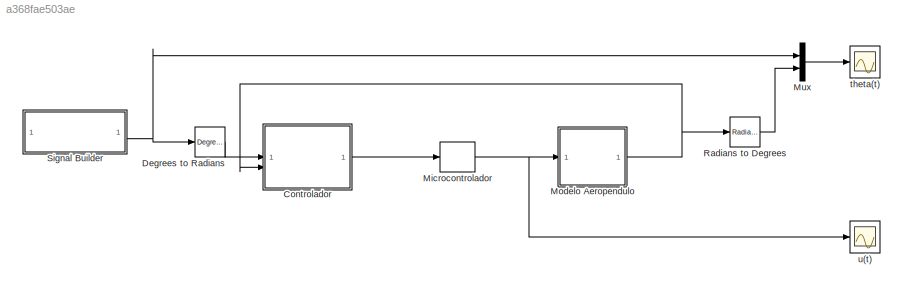
MODEL slx_a368fae503ae
KIND model
CONFIG AbsTol = auto
CONFIG EnableMultiTasking = off
CONFIG FixedStep = 0.001
CONFIG InitFcn = alpha = 20.70;\nbeta =  1.27;\ngamma = 0.53;
CONFIG MaxStep = auto
CONFIG MinStep = auto
CONFIG RelTol = 1e-3
CONFIG SampleTimeConstraint = Unconstrained
CONFIG SolverName = ode4
CONFIG StartTime = 0.0
CONFIG StopTime = 80
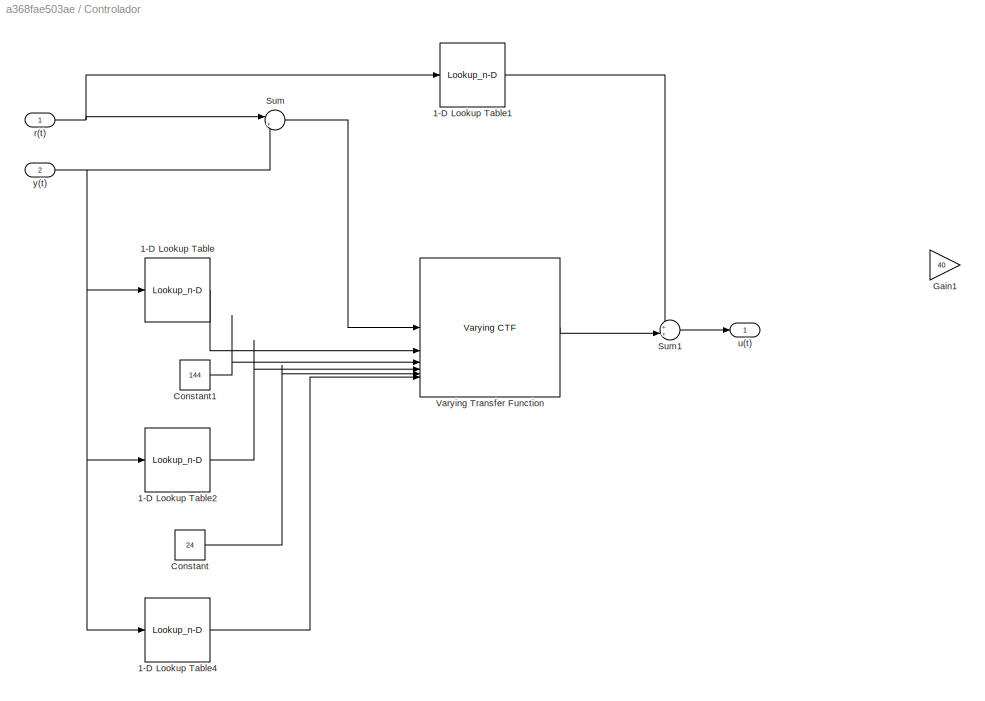
BLOCK [SubSystem] Controlador
BLOCK [Lookup_n-D] Controlador/1-D Lookup Table
  BreakpointsForDimension1 = deg2rad([15 30 40 50 60 70])
  InputPortMap = u0
  InternalRulePriority = Speed
  NumberOfTableDimensions = 1
  RndMeth = Simplest
  Table = [83.41 144 144 144 143.8 144]
BLOCK [Lookup_n-D] Controlador/1-D Lookup Table1
  BreakpointsForDimension1 = deg2rad([0 15 30 40 50 60 70])
  InputPortMap = u0
  InternalRulePriority = Speed
  NumberOfTableDimensions = 1
  RndMeth = Simplest
  Table = [0 40.08 35.94 31.79 26.68 20.75 14.19]
BLOCK [Lookup_n-D] Controlador/1-D Lookup Table2
  BreakpointsForDimension1 = deg2rad([15 30 40 50 60 70])
  InputPortMap = u0
  InternalRulePriority = Speed
  NumberOfTableDimensions = 1
  RndMeth = Simplest
  Table = [790.2 390.6 320.9 340.3 467.9 564.2 ]
BLOCK [Lookup_n-D] Controlador/1-D Lookup Table4
  BreakpointsForDimension1 = deg2rad([15 30 40 50 60 70])
  InputPortMap = u0
  InternalRulePriority = Speed
  NumberOfTableDimensions = 1
  RndMeth = Simplest
  Table = [331.8 188  130.8 111.5 128.9  97.45 ]
BLOCK [Constant] Controlador/Constant
  Value = 24
BLOCK [Constant] Controlador/Constant1
  Value = 144
BLOCK [Gain] Controlador/Gain1
  Gain = 40
BLOCK [Sum] Controlador/Sum
  Inputs = |+-
BLOCK [Sum] Controlador/Sum1
  Inputs = ++|
BLOCK [Reference] Controlador/Varying Transfer Function  REF=cstextras/Varying CTF  (lib defined in mdl_a5737024c95e)
  SourceBlock = cstextras/Varying CTF
  SourceType = Varying Transfer Function
BLOCK [Inport] Controlador/r(t)
BLOCK [Outport] Controlador/u(t)
  VectorParamsAs1DForOutWhenUnconnected = off
BLOCK [Inport] Controlador/y(t)
  Port = 2
BLOCK [Reference] Degrees to Radians  REF=simulink_extras/Transformations/Degrees to
Radians
  SourceBlock = simulink_extras/Transformations/Degrees to\nRadians
  SourceType = DegreesToRadians
BLOCK [ZeroOrderHold] Microcontrolador
  SampleTime = 0.020
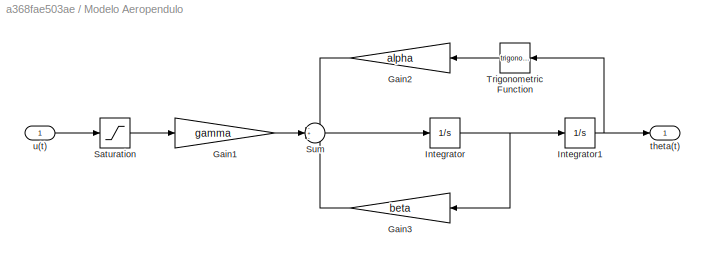
BLOCK [SubSystem] Modelo Aeropendulo
BLOCK [Gain] Modelo Aeropendulo/Gain1
  Gain = gamma
BLOCK [Gain] Modelo Aeropendulo/Gain2
  Gain = alpha
  NameLocation = top
BLOCK [Gain] Modelo Aeropendulo/Gain3
  Gain = beta
  NameLocation = top
BLOCK [Integrator] Modelo Aeropendulo/Integrator
BLOCK [Integrator] Modelo Aeropendulo/Integrator1
BLOCK [Saturate] Modelo Aeropendulo/Saturation
  LowerLimit = 0
  UpperLimit = 100
BLOCK [Sum] Modelo Aeropendulo/Sum
  Inputs = -+-
BLOCK [Trigonometry] Modelo Aeropendulo/Trigonometric Function
  NameLocation = top
BLOCK [Outport] Modelo Aeropendulo/theta(t)
  VectorParamsAs1DForOutWhenUnconnected = off
BLOCK [Inport] Modelo Aeropendulo/u(t)
BLOCK [Mux] Mux
  DisplayOption = bar
  Inputs = 2
BLOCK [Reference] Radians to Degrees  REF=simulink_extras/Transformations/Radians
to Degrees
  SourceBlock = simulink_extras/Transformations/Radians\nto Degrees
  SourceType = RadiansToDegrees
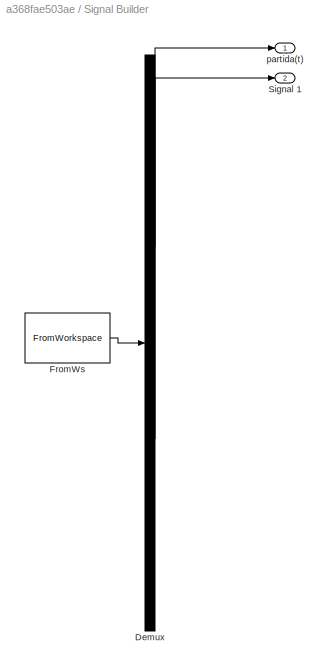
BLOCK [SubSystem] Signal Builder
  ClipboardFcn = sigbuilder_block('clipboard');
  CloseFcn = sigbuilder_block('close');
  ContinueFcn = sigbuilder_block('continue');
  CopyFcn = sigbuilder_block('copy');
  DeleteFcn = sigbuilder_block('delete');
  LoadFcn = sigbuilder_block('load');
  MaskHideContents = on
  ModelCloseFcn = sigbuilder_block('modelClose');
  NameChangeFcn = sigbuilder_block('namechange');
  OpenFcn = sigbuilder_block('open',[53.4 180.75 1093.2 361.05 ]);
  PauseFcn = sigbuilder_block('pause');
  PreSaveFcn = sigbuilder_block('preSave');
  StartFcn = sigbuilder_block('start');
  StopFcn = sigbuilder_block('stop');
  Tag = STV Subsys
BLOCK [Demux] Signal Builder/Demux
  DisplayOption = none
  Outputs = 2
  Tag = STV Demux
BLOCK [FromWorkspace] Signal Builder/FromWs
  Tag = STV FromWs
  VariableName = tuvar
BLOCK [Outport] Signal Builder/Signal 1
  Port = 2
  Tag = STV Outport
  VectorParamsAs1DForOutWhenUnconnected = off
BLOCK [Outport] Signal Builder/partida(t)
  Tag = STV Outport
  VectorParamsAs1DForOutWhenUnconnected = off
BLOCK [Scope] theta(t)
  Floating = off
  NumInputPorts = 1
  ScopeSpecificationString = Simulink.scopes.TimeScopeBlockCfg('CurrentConfiguration', extmgr.ConfigurationSet(extmgr.Configuration('Core','General UI',true),extmgr.Configuration('Core','Source UI',true),extmgr.Configuration('Sources','WiredSimulink',true,'DataLoggingVariableName','ScopeData1','DataLoggingSaveFormat','Array','DataLoggingDecimation','1','DataLoggingDecimateData',true),extmgr.Configuration('Visuals','Time Domai...<+1802ch>
BLOCK [Scope] u(t)
  Floating = off
  NumInputPorts = 1
  ScopeSpecificationString = Simulink.scopes.TimeScopeBlockCfg('CurrentConfiguration', extmgr.ConfigurationSet(extmgr.Configuration('Core','General UI',true),extmgr.Configuration('Core','Source UI',true),extmgr.Configuration('Sources','WiredSimulink',true,'DataLoggingSaveFormat','Array','DataLoggingDecimation','1','DataLoggingDecimateData',true),extmgr.Configuration('Visuals','Time Domain',true,'SerializedDisplays',{struct('M...<+1724ch>
LINE Controlador/1-D Lookup Table1:1 -> Controlador/Sum1:1
LINE Controlador/1-D Lookup Table2:1 -> Controlador/Varying Transfer Function:4
LINE Controlador/1-D Lookup Table4:1 -> Controlador/Varying Transfer Function:6
LINE Controlador/1-D Lookup Table:1 -> Controlador/Varying Transfer Function:2
LINE Controlador/Constant1:1 -> Controlador/Varying Transfer Function:3
LINE Controlador/Constant:1 -> Controlador/Varying Transfer Function:5
LINE Controlador/Sum1:1 -> Controlador/u(t):1
LINE Controlador/Sum:1 -> Controlador/Varying Transfer Function:1
LINE Controlador/Varying Transfer Function:1 -> Controlador/Sum1:2
NET Controlador/r(t):1 -> Controlador/1-D Lookup Table1:1, Controlador/Sum:1
NET Controlador/y(t):1 -> Controlador/1-D Lookup Table2:1, Controlador/1-D Lookup Table4:1, Controlador/1-D Lookup Table:1, Controlador/Sum:2
LINE Controlador:1 -> Microcontrolador:1
LINE Degrees to Radians:1 -> Controlador:1
NET Microcontrolador:1 -> Modelo Aeropendulo:1, u(t):1
LINE Modelo Aeropendulo/Gain1:1 -> Modelo Aeropendulo/Sum:2
LINE Modelo Aeropendulo/Gain2:1 -> Modelo Aeropendulo/Sum:1
LINE Modelo Aeropendulo/Gain3:1 -> Modelo Aeropendulo/Sum:3
NET Modelo Aeropendulo/Integrator1:1 -> Modelo Aeropendulo/Trigonometric Function:1, Modelo Aeropendulo/theta(t):1
NET Modelo Aeropendulo/Integrator:1 -> Modelo Aeropendulo/Gain3:1, Modelo Aeropendulo/Integrator1:1
LINE Modelo Aeropendulo/Saturation:1 -> Modelo Aeropendulo/Gain1:1
LINE Modelo Aeropendulo/Sum:1 -> Modelo Aeropendulo/Integrator:1
LINE Modelo Aeropendulo/Trigonometric Function:1 -> Modelo Aeropendulo/Gain2:1
LINE Modelo Aeropendulo/u(t):1 -> Modelo Aeropendulo/Saturation:1
NET Modelo Aeropendulo:1 -> Controlador:2, Radians to Degrees:1
LINE Mux:1 -> theta(t):1
LINE Radians to Degrees:1 -> Mux:2
NET Signal Builder:2 -> Degrees to Radians:1, Mux:1
note: NET lines group one-source signal fan-out (src -> all destinations, sorted); 1:1 wires keep LINE
